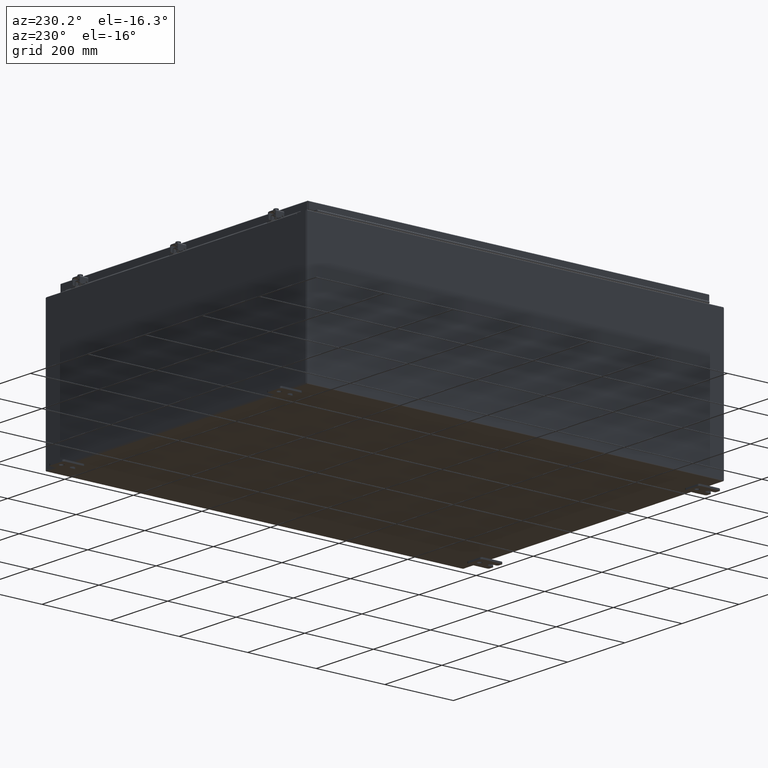
[diagram: clean part render]
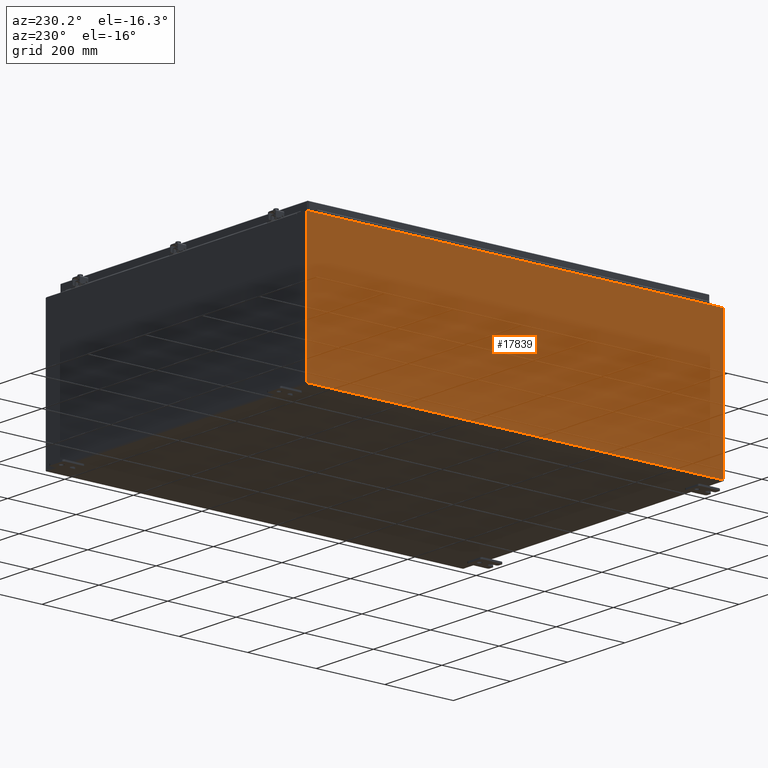
[diagram: same view with one face highlighted and labeled with its STEP entity id]
A machine part, auxiliary view. The second image highlights one B-rep face of the part: STEP entity #17839.
In plain terms, the highlighted planar face has unit normal (1, 0, 0).
Its self-contained STEP definition (entity closure, byte-faithful):
#430 = VERTEX_POINT ( 'NONE', #18194 ) ;
#2313 = LINE ( 'NONE', #40770, #23335 ) ;
#3208 = CARTESIAN_POINT ( 'NONE',  ( -18.00000000000006000, -23.92529999999998600, 15.83759999999998200 ) ) ;
#3264 = EDGE_CURVE ( 'NONE', #24568, #12199, #33703, .T. ) ;
#3957 = CARTESIAN_POINT ( 'NONE',  ( -18.00000000000006000, 23.92529999999998900, 15.83759999999999500 ) ) ;
#8769 = VECTOR ( 'NONE', #9918, 39.37007874015748100 ) ;
#8824 = EDGE_LOOP ( 'NONE', ( #51367, #47001, #44159, #52273 ) ) ;
#9918 = DIRECTION ( 'NONE',  ( -0.0000000000000000000, 1.000000000000000000, -0.0000000000000000000 ) ) ;
#10471 = EDGE_CURVE ( 'NONE', #12199, #49056, #22065, .T. ) ;
#11156 = EDGE_CURVE ( 'NONE', #430, #49056, #19988, .T. ) ;
#12199 = VERTEX_POINT ( 'NONE', #3957 ) ;
#16343 = EDGE_CURVE ( 'NONE', #430, #24568, #2313, .T. ) ;
#17839 = ADVANCED_FACE ( 'NONE', ( #45982 ), #41899, .F. ) ;
#18194 = CARTESIAN_POINT ( 'NONE',  ( -18.00000000000000400, -23.92529999999998600, 0.01299999999999984700 ) ) ;
#19988 = LINE ( 'NONE', #35046, #8769 ) ;
#21008 = CARTESIAN_POINT ( 'NONE',  ( -18.00000000000000400, 0.0000000000000000000, -6.201571169367085800E-014 ) ) ;
#22065 = LINE ( 'NONE', #30702, #27901 ) ;
#22337 = DIRECTION ( 'NONE',  ( 3.430827668758847900E-015, 0.0000000000000000000, -1.000000000000000000 ) ) ;
#23335 = VECTOR ( 'NONE', #48938, 39.37007874015748100 ) ;
#24568 = VERTEX_POINT ( 'NONE', #3208 ) ;
#25370 = DIRECTION ( 'NONE',  ( 3.430827668758847900E-015, 0.0000000000000000000, -1.000000000000000000 ) ) ;
#26420 = CARTESIAN_POINT ( 'NONE',  ( -18.00000000000006000, -23.92529999999998900, 15.83759999999998200 ) ) ;
#27901 = VECTOR ( 'NONE', #22337, 39.37007874015748100 ) ;
#28230 = CARTESIAN_POINT ( 'NONE',  ( -18.00000000000000400, 23.92529999999998900, 0.01299999999999984800 ) ) ;
#30606 = DIRECTION ( 'NONE',  ( 0.0000000000000000000, 1.000000000000000000, 0.0000000000000000000 ) ) ;
#30702 = CARTESIAN_POINT ( 'NONE',  ( -18.00000000000000400, 23.92529999999998900, -6.201571169367085800E-014 ) ) ;
#33703 = LINE ( 'NONE', #26420, #40795 ) ;
#35046 = CARTESIAN_POINT ( 'NONE',  ( -18.00000000000000400, 23.92529999999998900, 0.01299999999999984700 ) ) ;
#40770 = CARTESIAN_POINT ( 'NONE',  ( -18.00000000000000400, -23.92529999999999600, -6.201571169367085800E-014 ) ) ;
#40795 = VECTOR ( 'NONE', #30606, 39.37007874015748100 ) ;
#41899 = PLANE ( 'NONE',  #52862 ) ;
#44159 = ORIENTED_EDGE ( 'NONE', *, *, #11156, .F. ) ;
#45982 = FACE_OUTER_BOUND ( 'NONE', #8824, .T. ) ;
#47001 = ORIENTED_EDGE ( 'NONE', *, *, #10471, .T. ) ;
#48938 = DIRECTION ( 'NONE',  ( -3.430827668758847900E-015, 0.0000000000000000000, 1.000000000000000000 ) ) ;
#49056 = VERTEX_POINT ( 'NONE', #28230 ) ;
#50237 = DIRECTION ( 'NONE',  ( 1.000000000000000000, 0.0000000000000000000, 3.430827668758847900E-015 ) ) ;
#51367 = ORIENTED_EDGE ( 'NONE', *, *, #3264, .T. ) ;
#52273 = ORIENTED_EDGE ( 'NONE', *, *, #16343, .T. ) ;
#52862 = AXIS2_PLACEMENT_3D ( 'NONE', #21008, #50237, #25370 ) ;